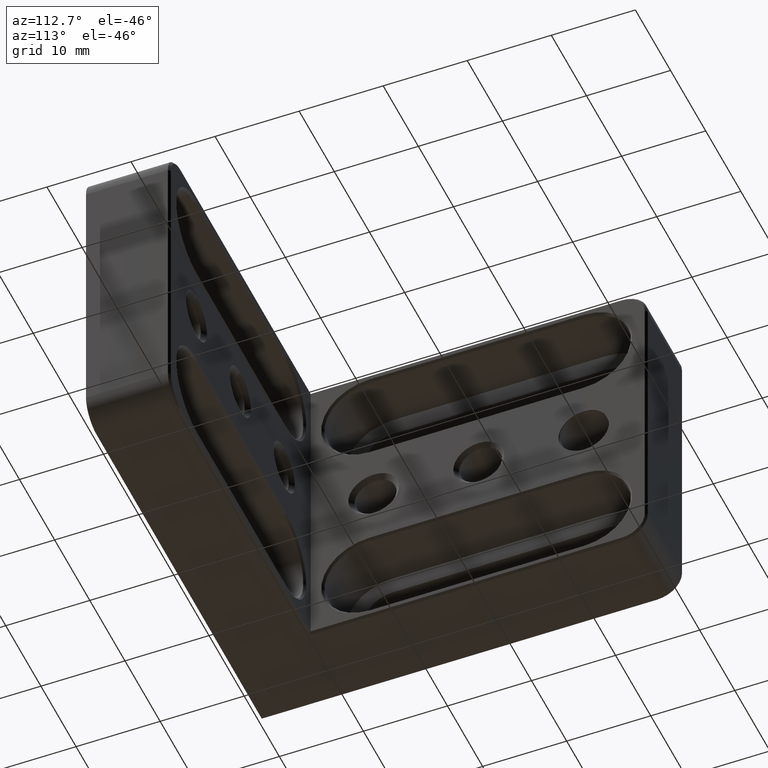
[diagram: clean part render]
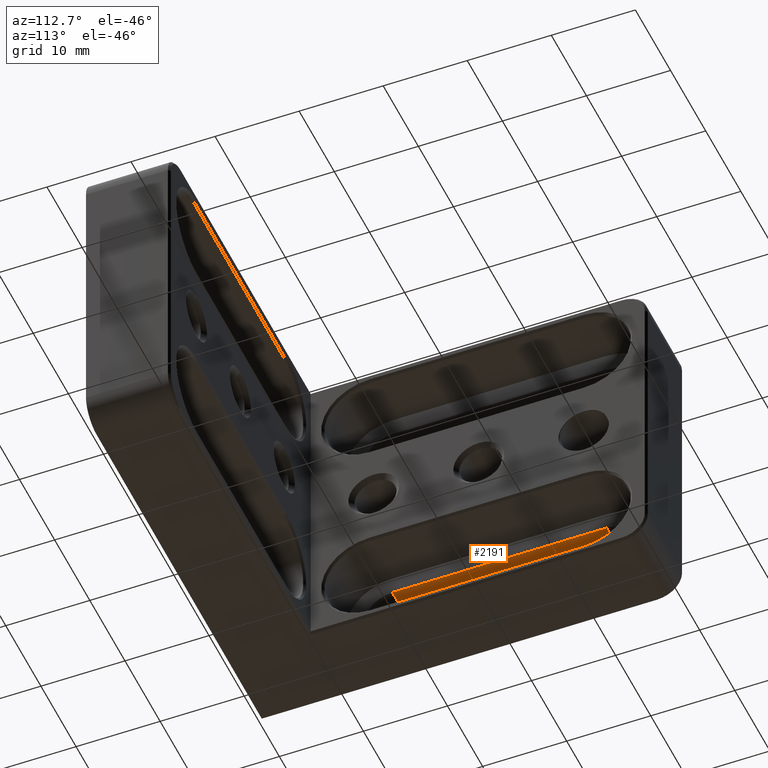
[diagram: same view with one face highlighted and labeled with its STEP entity id]
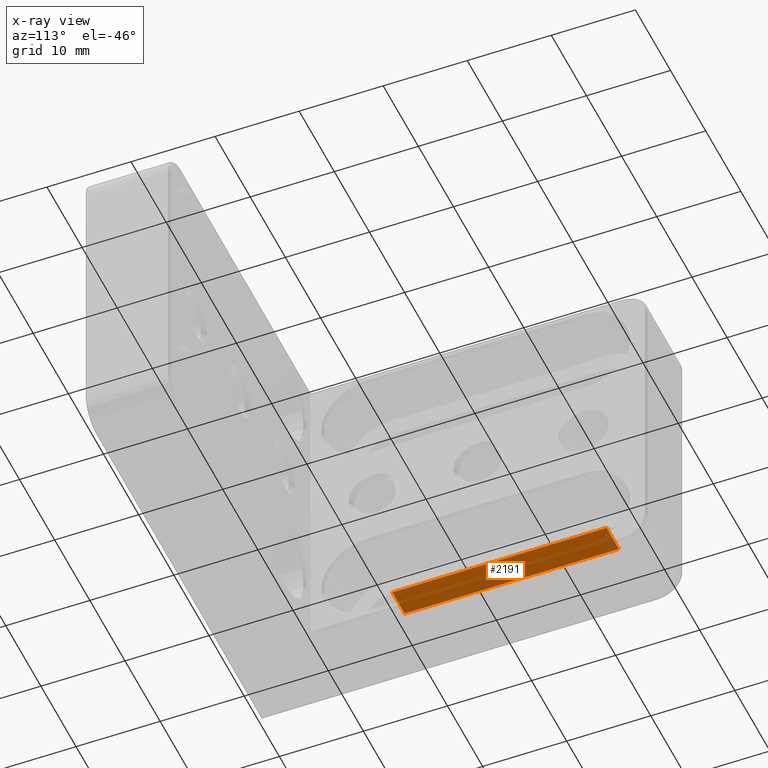
[diagram: x-ray of the same camera — body ghosted, the highlighted face saturated]
A machine part, auxiliary view. The second image highlights one B-rep face of the part: STEP entity #2191.
The next image is the same camera in x-ray: the body ghosted, the highlighted face saturated — about 56% of this face is hidden behind the body in this view.
In plain terms, the highlighted planar face has unit normal (0, 0, -1).
Its self-contained STEP definition (entity closure, byte-faithful):
#52 = DIRECTION ( 'NONE',  ( 0.000000000000000000, 1.000000000000000000, 0.000000000000000000 ) ) ;
#181 = CARTESIAN_POINT ( 'NONE',  ( -28.00000000000000355, 42.50000000000000000, -9.200000000000008171 ) ) ;
#193 = LINE ( 'NONE', #632, #1800 ) ;
#206 = EDGE_CURVE ( 'NONE', #2564, #2323, #193, .T. ) ;
#250 = ORIENTED_EDGE ( 'NONE', *, *, #206, .F. ) ;
#336 = VERTEX_POINT ( 'NONE', #894 ) ;
#376 = CARTESIAN_POINT ( 'NONE',  ( -25.00000000000000711, 17.00000000000000711, -9.200000000000008171 ) ) ;
#396 = EDGE_CURVE ( 'NONE', #336, #2323, #759, .T. ) ;
#501 = CARTESIAN_POINT ( 'NONE',  ( -28.00000000000000355, 17.00000000000000711, -9.200000000000008171 ) ) ;
#574 = CARTESIAN_POINT ( 'NONE',  ( -21.50000000000000355, 17.00000000000000711, -9.200000000000006395 ) ) ;
#589 = ORIENTED_EDGE ( 'NONE', *, *, #2051, .F. ) ;
#616 = EDGE_LOOP ( 'NONE', ( #847, #1140, #250, #589 ) ) ;
#620 = CARTESIAN_POINT ( 'NONE',  ( -25.00000000000000711, 10.00000000000000000, -9.200000000000008171 ) ) ;
#632 = CARTESIAN_POINT ( 'NONE',  ( -21.50000000000000355, 42.50000000000000000, -9.200000000000006395 ) ) ;
#648 = LINE ( 'NONE', #620, #2067 ) ;
#759 = LINE ( 'NONE', #1357, #1008 ) ;
#847 = ORIENTED_EDGE ( 'NONE', *, *, #2268, .T. ) ;
#894 = CARTESIAN_POINT ( 'NONE',  ( -25.00000000000000711, 42.50000000000000000, -9.200000000000008171 ) ) ;
#962 = FACE_OUTER_BOUND ( 'NONE', #616, .T. ) ;
#991 = DIRECTION ( 'NONE',  ( -1.000000000000000000, 0.000000000000000000, -1.369518533665900312E-16 ) ) ;
#1008 = VECTOR ( 'NONE', #1548, 1000.000000000000000 ) ;
#1034 = VERTEX_POINT ( 'NONE', #376 ) ;
#1075 = CARTESIAN_POINT ( 'NONE',  ( -21.50000000000000355, 42.50000000000000000, -9.200000000000006395 ) ) ;
#1140 = ORIENTED_EDGE ( 'NONE', *, *, #396, .T. ) ;
#1357 = CARTESIAN_POINT ( 'NONE',  ( -28.00000000000000355, 42.50000000000000000, -9.200000000000008171 ) ) ;
#1548 = DIRECTION ( 'NONE',  ( 1.000000000000000000, -0.000000000000000000, 1.369518533665900312E-16 ) ) ;
#1608 = DIRECTION ( 'NONE',  ( 1.369518533665900312E-16, 0.000000000000000000, -1.000000000000000000 ) ) ;
#1800 = VECTOR ( 'NONE', #2015, 1000.000000000000000 ) ;
#1839 = AXIS2_PLACEMENT_3D ( 'NONE', #181, #1608, #991 ) ;
#2015 = DIRECTION ( 'NONE',  ( 0.000000000000000000, 1.000000000000000000, 0.000000000000000000 ) ) ;
#2051 = EDGE_CURVE ( 'NONE', #1034, #2564, #2496, .T. ) ;
#2067 = VECTOR ( 'NONE', #52, 1000.000000000000000 ) ;
#2187 = PLANE ( 'NONE',  #1839 ) ;
#2191 = ADVANCED_FACE ( 'NONE', ( #962 ), #2187, .T. ) ;
#2268 = EDGE_CURVE ( 'NONE', #1034, #336, #648, .T. ) ;
#2302 = DIRECTION ( 'NONE',  ( 1.000000000000000000, -0.000000000000000000, 1.369518533665900312E-16 ) ) ;
#2323 = VERTEX_POINT ( 'NONE', #1075 ) ;
#2381 = VECTOR ( 'NONE', #2302, 1000.000000000000000 ) ;
#2496 = LINE ( 'NONE', #501, #2381 ) ;
#2564 = VERTEX_POINT ( 'NONE', #574 ) ;